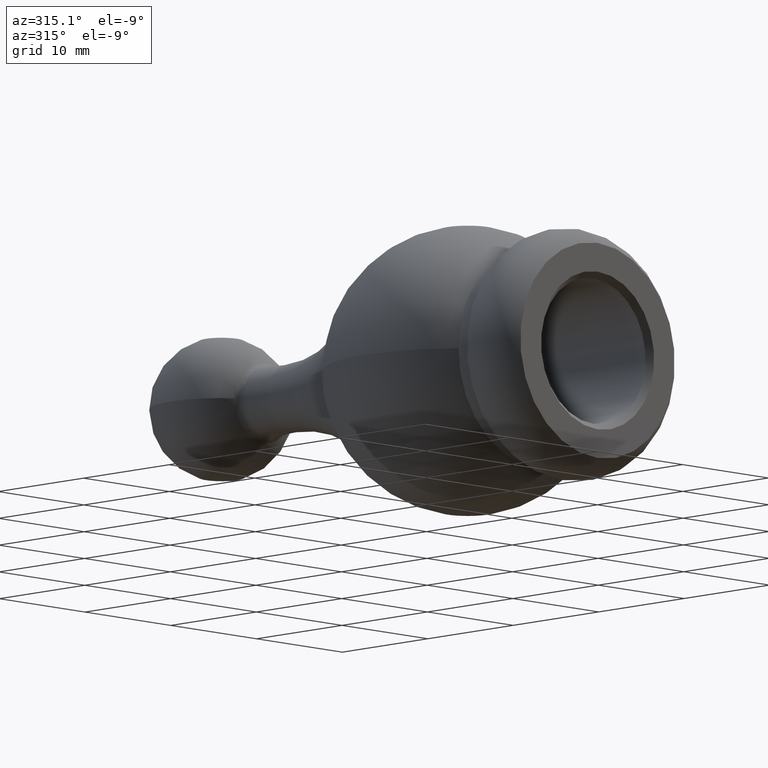
[diagram: clean part render]
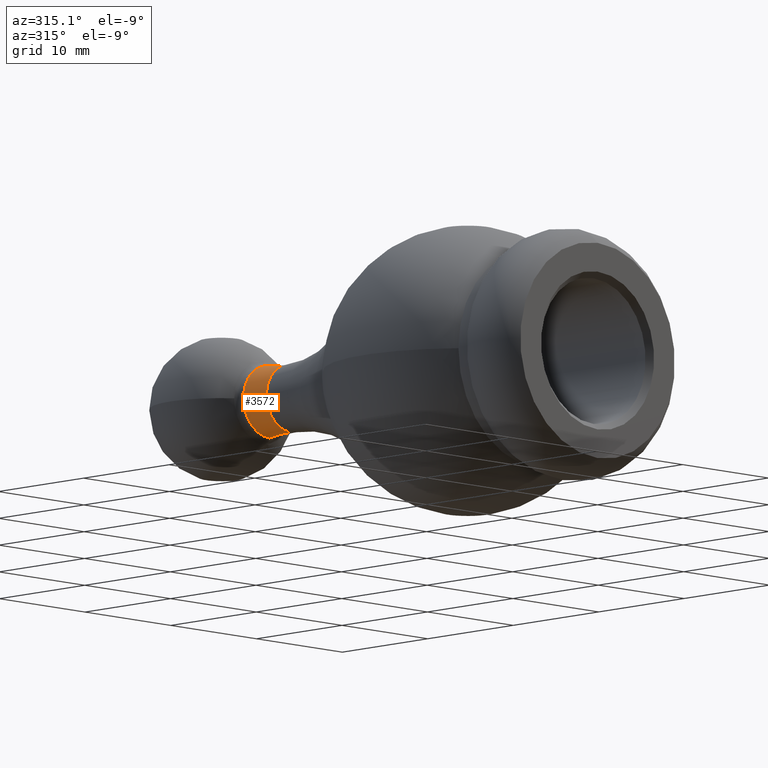
[diagram: same view with one face highlighted and labeled with its STEP entity id]
A machine part, auxiliary view. The second image highlights one B-rep face of the part: STEP entity #3572.
In plain terms, the highlighted toroidal blend (fillet) surface has major radius 18.8166 mm and minor (blend) radius 16 mm.
Its self-contained STEP definition (entity closure, byte-faithful):
#440 = EDGE_CURVE ( 'NONE', #5568, #4007, #9282, .T. ) ;
#685 = ORIENTED_EDGE ( 'NONE', *, *, #5294, .T. ) ;
#760 = DIRECTION ( 'NONE',  ( 1.000000000000000000, 0.000000000000000000, -1.224646799147353207E-16 ) ) ;
#889 = CARTESIAN_POINT ( 'NONE',  ( 0.000000000000000000, 38.41132517361530319, 0.000000000000000000 ) ) ;
#1265 = CARTESIAN_POINT ( 'NONE',  ( 0.000000000000000000, 35.91712005116201567, -18.81662148378517685 ) ) ;
#1537 = CARTESIAN_POINT ( 'NONE',  ( 0.000000000000000000, 38.41132517361530319, -3.012225234414318997 ) ) ;
#1729 = DIRECTION ( 'NONE',  ( -0.000000000000000000, -1.000000000000000000, -0.000000000000000000 ) ) ;
#1813 = DIRECTION ( 'NONE',  ( 0.000000000000000000, 0.000000000000000000, -1.000000000000000000 ) ) ;
#2422 = DIRECTION ( 'NONE',  ( -1.224646799147353207E-16, 0.000000000000000000, -1.000000000000000000 ) ) ;
#2528 = CARTESIAN_POINT ( 'NONE',  ( 0.000000000000000000, 35.91712005116201567, 0.000000000000000000 ) ) ;
#3029 = ORIENTED_EDGE ( 'NONE', *, *, #440, .T. ) ;
#3247 = VERTEX_POINT ( 'NONE', #9711 ) ;
#3572 = ADVANCED_FACE ( 'NONE', ( #6159 ), #7416, .F. ) ;
#3875 = AXIS2_PLACEMENT_3D ( 'NONE', #2528, #10415, #6074 ) ;
#4007 = VERTEX_POINT ( 'NONE', #1537 ) ;
#4084 = ORIENTED_EDGE ( 'NONE', *, *, #5552, .F. ) ;
#4361 = CIRCLE ( 'NONE', #7969, 2.816621483785176849 ) ;
#5294 = EDGE_CURVE ( 'NONE', #3247, #5568, #9822, .T. ) ;
#5552 = EDGE_CURVE ( 'NONE', #8330, #4007, #6705, .T. ) ;
#5568 = VERTEX_POINT ( 'NONE', #7386 ) ;
#5894 = CARTESIAN_POINT ( 'NONE',  ( 2.304371527088483740E-15, 35.91712005116201567, 18.81662148378517685 ) ) ;
#5919 = CARTESIAN_POINT ( 'NONE',  ( 0.000000000000000000, 35.91712005116201567, 0.000000000000000000 ) ) ;
#6074 = DIRECTION ( 'NONE',  ( 0.000000000000000000, 0.000000000000000000, -1.000000000000000000 ) ) ;
#6159 = FACE_OUTER_BOUND ( 'NONE', #6178, .T. ) ;
#6178 = EDGE_LOOP ( 'NONE', ( #9837, #685, #3029, #4084 ) ) ;
#6414 = DIRECTION ( 'NONE',  ( -1.000000000000000000, 0.000000000000000000, 0.000000000000000000 ) ) ;
#6705 = CIRCLE ( 'NONE', #9250, 16.00000000000000000 ) ;
#7386 = CARTESIAN_POINT ( 'NONE',  ( 3.943850508642223049E-16, 38.41132517361530319, 3.012225234414318997 ) ) ;
#7416 = TOROIDAL_SURFACE ( 'NONE', #3875, 18.81662148378517685, 16.00000000000000000 ) ;
#7504 = AXIS2_PLACEMENT_3D ( 'NONE', #5894, #760, #2422 ) ;
#7607 = DIRECTION ( 'NONE',  ( 0.000000000000000000, 0.000000000000000000, -1.000000000000000000 ) ) ;
#7969 = AXIS2_PLACEMENT_3D ( 'NONE', #5919, #10182, #7607 ) ;
#8330 = VERTEX_POINT ( 'NONE', #10588 ) ;
#8682 = EDGE_CURVE ( 'NONE', #3247, #8330, #4361, .T. ) ;
#9069 = DIRECTION ( 'NONE',  ( 0.000000000000000000, 0.000000000000000000, 1.000000000000000000 ) ) ;
#9250 = AXIS2_PLACEMENT_3D ( 'NONE', #1265, #6414, #9069 ) ;
#9282 = CIRCLE ( 'NONE', #10280, 3.012225234414318997 ) ;
#9711 = CARTESIAN_POINT ( 'NONE',  ( 3.449366484527188053E-16, 35.91712005116201567, 2.816621483785176849 ) ) ;
#9822 = CIRCLE ( 'NONE', #7504, 16.00000000000000000 ) ;
#9837 = ORIENTED_EDGE ( 'NONE', *, *, #8682, .F. ) ;
#10182 = DIRECTION ( 'NONE',  ( -0.000000000000000000, -1.000000000000000000, -0.000000000000000000 ) ) ;
#10280 = AXIS2_PLACEMENT_3D ( 'NONE', #889, #1729, #1813 ) ;
#10415 = DIRECTION ( 'NONE',  ( -0.000000000000000000, -1.000000000000000000, -0.000000000000000000 ) ) ;
#10588 = CARTESIAN_POINT ( 'NONE',  ( 0.000000000000000000, 35.91712005116201567, -2.816621483785176849 ) ) ;